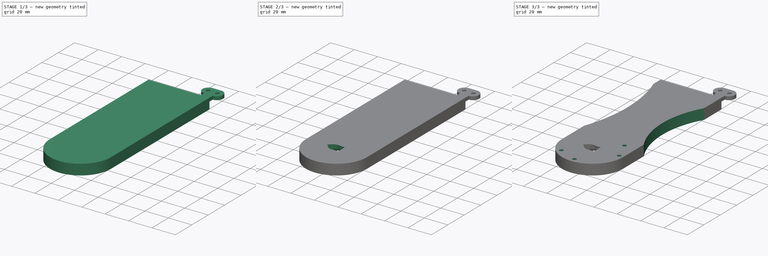
[diagram: build sequence overview — one tinted view per stage of 3, left to right]
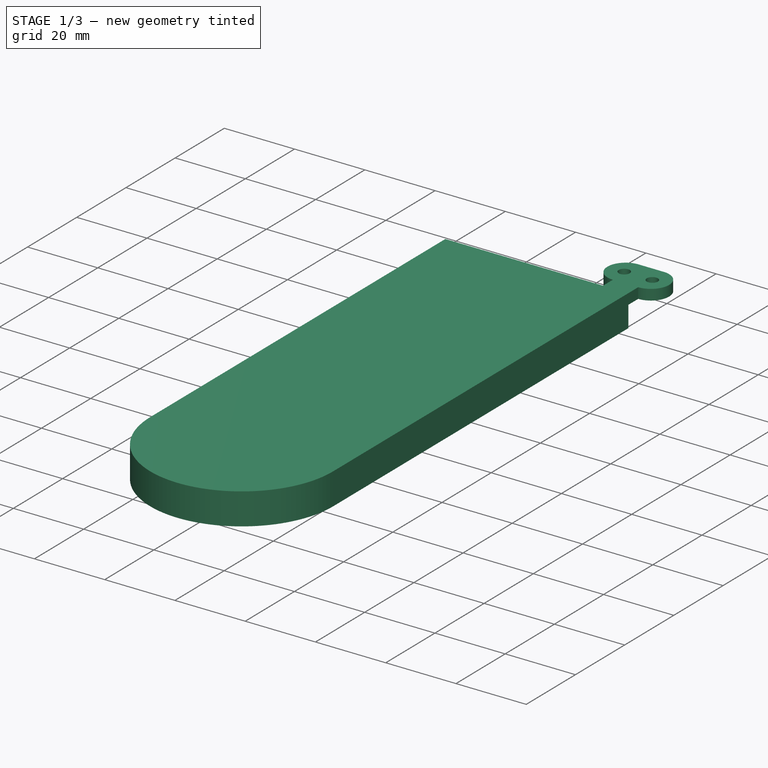
[diagram: stage 1 of 3 — iso view after this stage's code; geometry added in this stage tinted green]
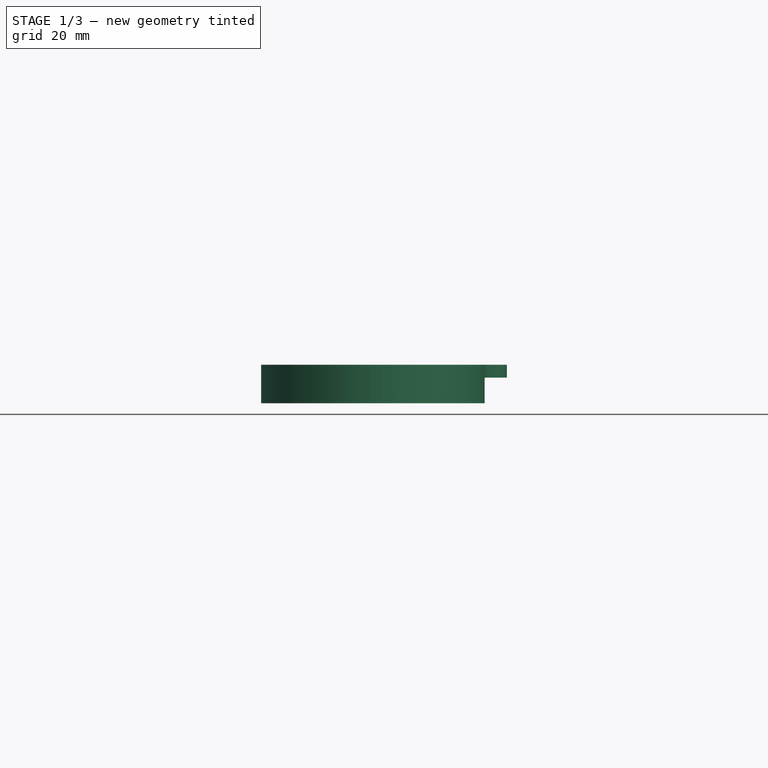
[diagram: stage 1 of 3 — front view after this stage's code; geometry added in this stage tinted green]
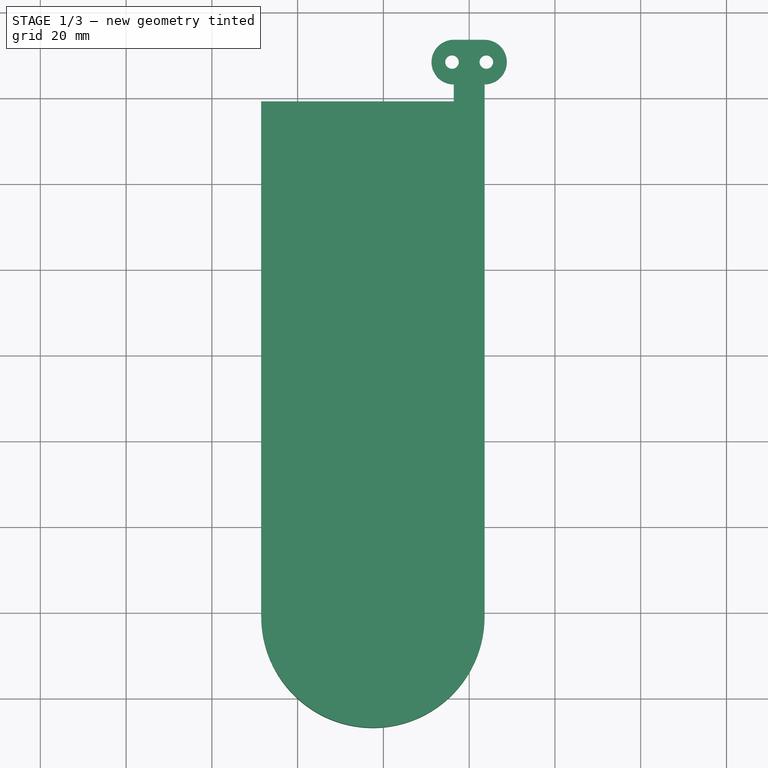
[diagram: stage 1 of 3 — top view after this stage's code; geometry added in this stage tinted green]
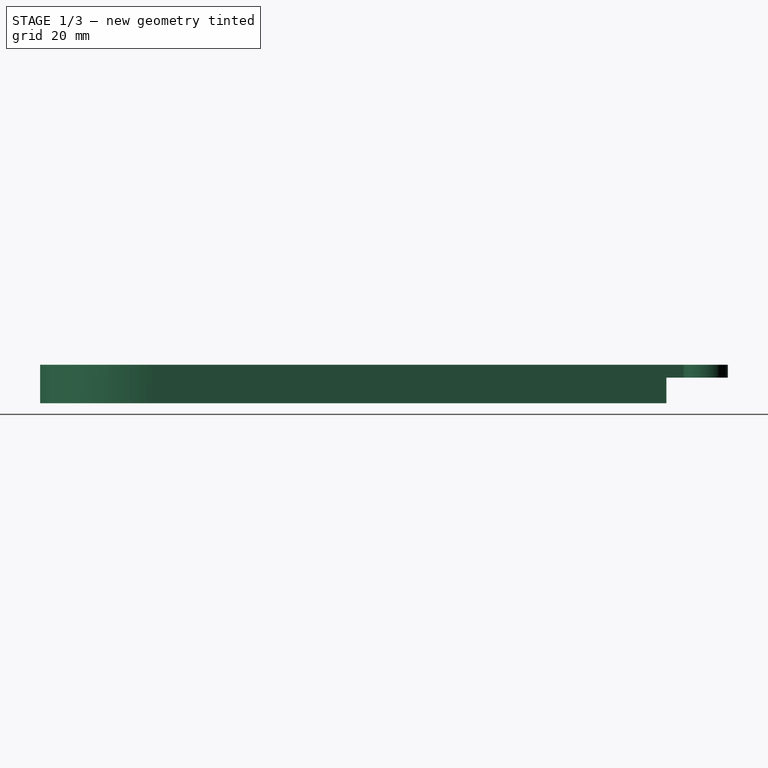
[diagram: stage 1 of 3 — right view after this stage's code; geometry added in this stage tinted green]
FCSTD DOCUMENT  (FreeCAD 0.20R29177 +426 (Git))
Label: button_base_holder
License: All rights reserved
LicenseURL: http://en.wikipedia.org/wiki/All_rights_reserved
objects: Sketcher::SketchObject×7, PartDesign::Pocket×3, Spreadsheet::Sheet×2, PartDesign::Pad×2, PartDesign::SubtractivePipe×1, PartDesign::Body×1
note: 20 computed .brp shape members not serialized (recipe doc carries the construction recipe); baked Part::Feature solids carry a one-line shape summary decoded from their .brp
EXTERNAL_REF file=base_modular_holder.FCStd obj=Spreadsheet003
EXTERNAL_REF file=base_modular_holder.FCStd obj=Spreadsheet004
EXTERNAL_REF file=base_modular_holder.FCStd obj=Sketch

FEATURE [Sketcher::SketchObject] Sketch
  FullyConstrained = true
  MapMode = 5
  Support = -> [XY_Plane]
  expr: .Constraints.pad_ylen = <<base_data>>.button_far_out
  expr: .Constraints.ylen_offset = <<base_data>>.space * 2
  expr: Constraints[25] = <<base_data>>.space
  expr: Constraints[27] = <<base_modular_holder>>#<<button_connect_data>>.screw_dia
  expr: Constraints[33] = <<base_modular_holder>>#<<button_connect_data>>.screw_dia / 2
  expr: Constraints[34] = <<base_modular_holder>>#<<button_connect_data>>.wall_dia - <<base_data>>.space
  expr: Constraints[41] = <<base_modular_holder>>#<<button_connect_data>>.dist_in_base + <<base_data>>.space / 2
  expr: Constraints[51] = <<base_modular_holder>>#<<button_connect_data>>.center_connect2center_hole + <<base_modular_holder>>#<<wire_hole_data>>.wire_xlen / 2 + <<base_data>>.wall_thick * 5
  expr: Constraints[9] = <<base_modular_holder>>#<<button_connect_data>>.dist_screw_dias - <<base_data>>.space * 2
  sketch-geometry (22):
    g0: LineSegment StartX=-3.6 StartY=3.2 StartZ=0 EndX=3.6 EndY=3.2 EndZ=0
    g1: ArcOfCircle CenterX=-3.6 CenterY=8.38 CenterZ=0 NormalX=0 NormalY=0 NormalZ=1 AngleXU=0 Radius=5.18 StartAngle=1.5708 EndAngle=4.71239
    g2: ArcOfCircle CenterX=3.6 CenterY=8.38 CenterZ=0 NormalX=0 NormalY=0 NormalZ=1 AngleXU=0 Radius=5.18 StartAngle=4.71239 EndAngle=7.85398
    g3: LineSegment StartX=-3.6 StartY=13.56 StartZ=0 EndX=0 EndY=13.56 EndZ=0
    g4: LineSegment StartX=3.6 StartY=13.56 StartZ=0 EndX=0 EndY=13.56 EndZ=0
    g5: LineSegment StartX=3.6 StartY=3.2 StartZ=0 EndX=3.6 EndY=13.56 EndZ=0
    g6: LineSegment StartX=-3.6 StartY=3.2 StartZ=0 EndX=-3.6 EndY=13.56 EndZ=0
    g7: LineSegment StartX=3.6 StartY=8.38 StartZ=0 EndX=0 EndY=8.38 EndZ=0
    g8: Circle CenterX=-4 CenterY=8.38 CenterZ=0 NormalX=0 NormalY=0 NormalZ=1 AngleXU=0 Radius=1.58
    g9: Circle CenterX=4 CenterY=8.38 CenterZ=0 NormalX=0 NormalY=0 NormalZ=1 AngleXU=0 Radius=1.58
    g10: LineSegment StartX=3.6 StartY=8.38 StartZ=0 EndX=4 EndY=8.38 EndZ=0
    g11: LineSegment StartX=3.6 StartY=8.38 StartZ=0 EndX=5.18 EndY=8.38 EndZ=0
    g12: LineSegment StartX=5.18 StartY=8.38 StartZ=0 EndX=8.78 EndY=8.38 EndZ=0
    g13: LineSegment StartX=-3.6 StartY=3.2 StartZ=0 EndX=-3.6 EndY=0 EndZ=0
    g14: LineSegment StartX=3.6 StartY=3.2 StartZ=0 EndX=3.6 EndY=0 EndZ=0
    g15: LineSegment StartX=-48.5 StartY=-0.8 StartZ=0 EndX=-48.5 EndY=-120.8 EndZ=0
    g16: LineSegment StartX=3.6 StartY=0 StartZ=0 EndX=3.6 EndY=-120.8 EndZ=0
    g17: LineSegment StartX=-48.5 StartY=-120.8 StartZ=0 EndX=3.6 EndY=-120.8 EndZ=0
    g18: LineSegment StartX=-3.6 StartY=0 StartZ=0 EndX=-3.6 EndY=-0.8 EndZ=0
    g19: LineSegment StartX=-48.5 StartY=-0.8 StartZ=0 EndX=-3.6 EndY=-0.8 EndZ=0
    g20: ArcOfCircle CenterX=-22.45 CenterY=-120.8 CenterZ=0 NormalX=0 NormalY=0 NormalZ=1 AngleXU=0 Radius=26.05 StartAngle=3.14159 EndAngle=6.28319
    g21: LineSegment StartX=-4 StartY=8.38 StartZ=0 EndX=-3.6 EndY=8.38 EndZ=0
  constraints (66):
    c: Horizontal(g0)
    c: Coincident(g3,g1)
    c: PointOnObject(g3,g-2)
    c: Horizontal(g3)
    c: Coincident(g4,g2)
    c: Coincident(g4,g3)
    c: Horizontal(g4)
    c: Equal(g3,g4)
    c: Coincident(g2,g5)
    c: DistanceX(g0,g0) = 7.2
    c: Coincident(g0,g2)
    c: Coincident(g0,g1)
    c: Coincident(g2,g5)
    c: PointOnObject(g2,g5)
    c: Coincident(g6,g1)
    c: Coincident(g6,g1)
    c: PointOnObject(g1,g6)
    c: Vertical(g6)
    c: Vertical(g5)
    c: Coincident(g7,g2)
    c: PointOnObject(g7,g-2)
    c: Horizontal(g7)
    c: Coincident(g10,g2)
    c: Coincident(g10,g9)
    c: Horizontal(g10)
    c: DistanceX(g10,g10) = 0.4
    c: Equal(g9,g8)
    c: Diameter(g8) = 3.16
    c: Coincident(g11,g2)
    c: Horizontal(g11)
    c: Coincident(g12,g11)
    c: PointOnObject(g12,g2)
    c: Horizontal(g12)
    c: DistanceX(g11,g11) = 1.58
    c: DistanceX(g12,g12) = 3.6
    c: Coincident(g13,g1)
    c: PointOnObject(g13,g-1)
    c: Vertical(g13)
    c: Coincident(g14,g2)
    c: PointOnObject(g14,g-1)
    c: Vertical(g14)
    c: DistanceY(g13,g13) = 3.2
    c: Vertical(g15)
    c: Coincident(g16,g14)
    c: Vertical(g16)
    c: Coincident(g17,g15)
    c: Coincident(g17,g16)
    c: Horizontal(g17)
    c: Coincident(g18,g13)
    c: Vertical(g18)
    c: DistanceY(g18,g18) = 0.8  'ylen_offset'
    c: DistanceX(g15,g7) = 48.5
    c: DistanceY(g15,g15) = 120  'pad_ylen'
    c: DistanceX(g-1,g14) = 3.6  'xlen_offset'
    c: DistanceY(g16,g14) = 120.8  'ylen'
    c: DistanceX(g15,g14) = 52.1  'xlen'
    c: Coincident(g19,g15)
    c: Horizontal(g19)
    c: PointOnObject(g20,g17)
    c: Coincident(g20,g16)
    c: Coincident(g20,g15)
    c: Coincident(g19,g18)
    c: Coincident(g21,g8)
    c: Coincident(g21,g1)
    c: Horizontal(g21)
    c: Equal(g10,g21)
FEATURE [Spreadsheet::Sheet] Spreadsheet  label="base_data"
  cells = A1=Name; B1=Value; A2=space; B2(space)==0.4mm; A3=wall_thick; B3(wall_thick)==3.5mm; A4=base_ylen_pad; B4(base_ylen_pad)==10mm; A5=wire_cut_len; A7=button_slit_rad; B7(button_slit_thick)==5mm; A8=button_far_out; B8(button_far_out)==120mm
FEATURE [PartDesign::Pad] Pad
  Direction = (0,0,1)
  Length = 3
  Length2 = 10
  Profile = -> Sketch
  ReferenceAxis = -> Sketch [N_Axis]
  Type = 0
  expr: Length = <<base_modular_holder>>#<<button_connect_data>>.clasp_thick
FEATURE [Sketcher::SketchObject] Sketch001
  FullyConstrained = true
  MapMode = 5
  Support = -> [XY_Plane]
  expr: .AttachmentOffset.Base.z = 0
  expr: Constraints[11] = Sketch.Constraints.xlen_offset
  expr: Constraints[12] = Sketch.Constraints.ylen_offset
  expr: Constraints[13] = Sketch.Constraints.xlen
  expr: Constraints[14] = Sketch.Constraints.ylen - Sketch.Constraints.ylen_offset
  sketch-geometry (5):
    g0: LineSegment StartX=3.6 StartY=-0.8 StartZ=0 EndX=-48.5 EndY=-0.8 EndZ=0
    g1: LineSegment StartX=-48.5 StartY=-0.8 StartZ=0 EndX=-48.5 EndY=-120.8 EndZ=0
    g2: LineSegment StartX=-48.5 StartY=-120.8 StartZ=0 EndX=3.6 EndY=-120.8 EndZ=0
    g3: ArcOfCircle CenterX=-22.45 CenterY=-120.8 CenterZ=0 NormalX=0 NormalY=0 NormalZ=1 AngleXU=0 Radius=26.05 StartAngle=3.14159 EndAngle=6.28319
    g4: LineSegment StartX=3.6 StartY=-0.8 StartZ=0 EndX=3.6 EndY=-120.8 EndZ=0
  constraints (15):
    c: Horizontal(g0)
    c: Coincident(g1,g0)
    c: Vertical(g1)
    c: Coincident(g2,g1)
    c: Horizontal(g2)
    c: PointOnObject(g3,g2)
    c: Coincident(g3,g1)
    c: Coincident(g4,g0)
    c: Coincident(g4,g3)
    c: Vertical(g4)
    c: Coincident(g3,g2)
    c: DistanceX(g-1,g0) = 3.6
    c: DistanceY(g0,g-1) = 0.8
    c: DistanceX(g0,g0) = 52.1
    c: DistanceY(g1,g1) = 120
FEATURE [PartDesign::Pad] Pad001
  BaseFeature = -> Pad
  Direction = (0,0,1)
  Length = 6
  Length2 = 10
  Profile = -> Sketch001
  ReferenceAxis = -> Sketch001 [N_Axis]
  Reversed = true
  Type = 0
  expr: Length = <<base_modular_holder>>#<<Sketch>>.Constraints.thick_ylen - <<base_modular_holder>>#<<button_connect_data>>.clasp_thick
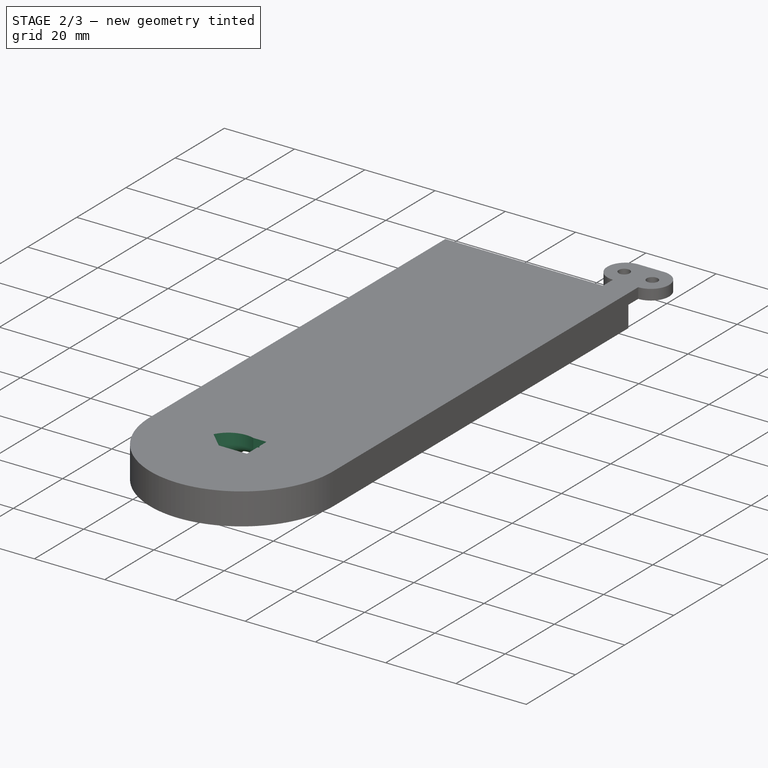
[diagram: stage 2 of 3 — iso view after this stage's code; geometry added in this stage tinted green]
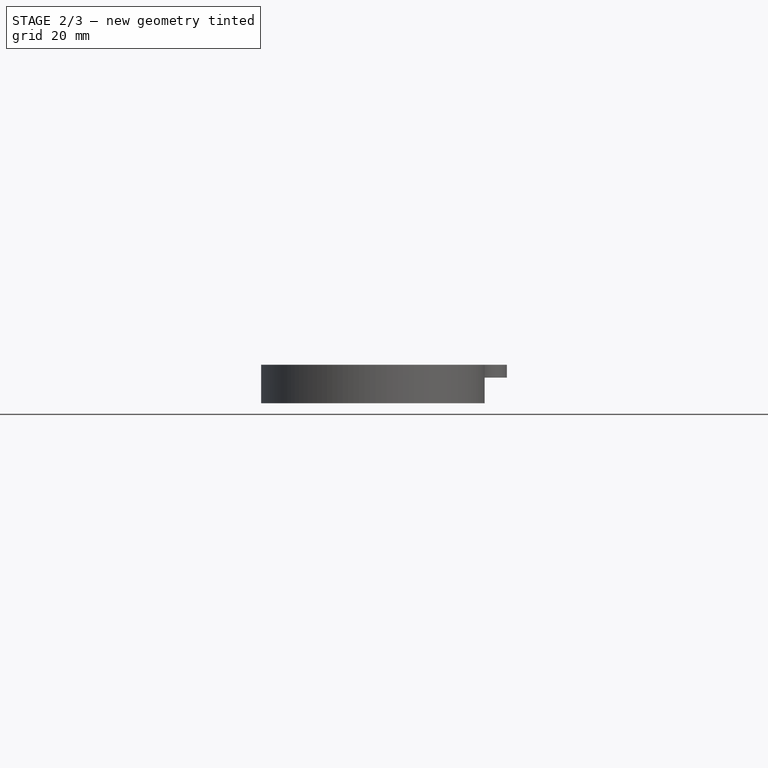
[diagram: stage 2 of 3 — front view after this stage's code; geometry added in this stage tinted green]
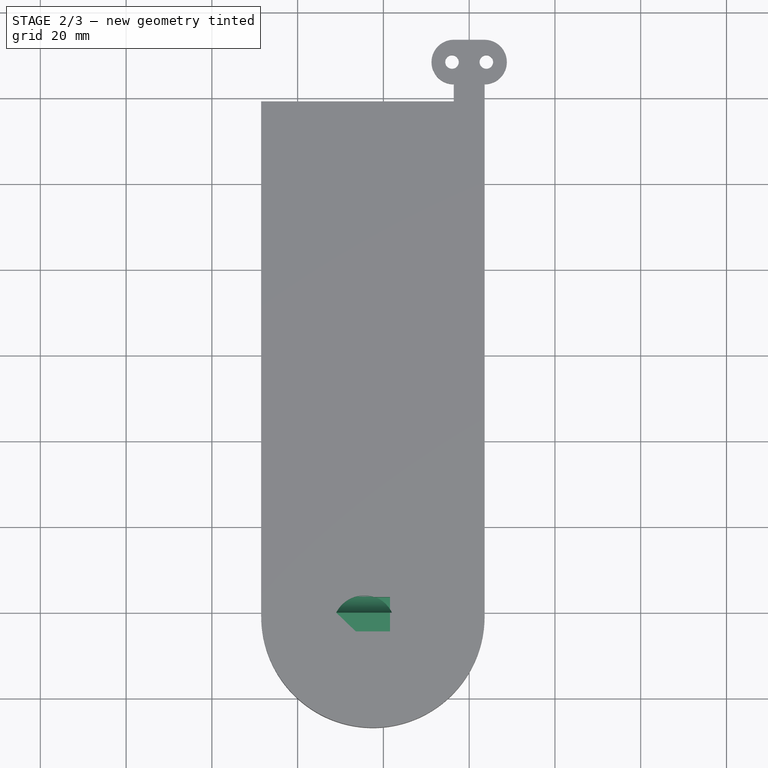
[diagram: stage 2 of 3 — top view after this stage's code; geometry added in this stage tinted green]
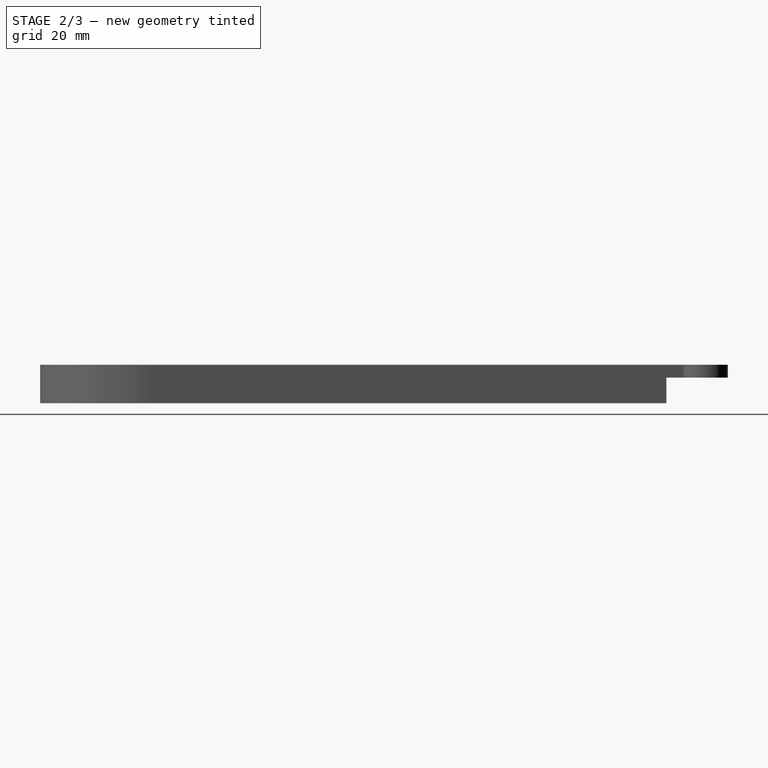
[diagram: stage 2 of 3 — right view after this stage's code; geometry added in this stage tinted green]
FEATURE [Sketcher::SketchObject] Sketch002
  FullyConstrained = true
  MapMode = 5
  Placement = pos=(0,0,0) rot=(1,0,0;1.5708rad)
  Support = -> [XZ_Plane]
  expr: Constraints[15] = <<base_modular_holder>>#<<wire_hole_data>>.wire_xlen
  expr: Constraints[16] = <<base_modular_holder>>#<<wire_hole_data>>.wire_ylen
  expr: Constraints[17] = <<Pad001>>.Length + <<base_data>>.space / 10
  expr: Constraints[4] = <<base_modular_holder>>#<<button_connect_data>>.center_connect2center_hole
  sketch-geometry (6):
    g0: LineSegment StartX=0 StartY=0 StartZ=0 EndX=0 EndY=-6.04 EndZ=0
    g1: LineSegment StartX=0 StartY=-6.04 StartZ=0 EndX=-24.5 EndY=-6.04 EndZ=0
    g2: LineSegment StartX=-24.5 StartY=-6.04 StartZ=0 EndX=-31 EndY=-6.04 EndZ=0
    g3: LineSegment StartX=-24.5 StartY=-6.04 StartZ=0 EndX=-18 EndY=-6.04 EndZ=0
    g4: ArcOfCircle CenterX=-24.5 CenterY=-9.32125 CenterZ=0 NormalX=0 NormalY=0 NormalZ=1 AngleXU=0 Radius=7.28125 StartAngle=0.467486 EndAngle=2.67411
    g5: LineSegment StartX=-24.5 StartY=-6.04 StartZ=0 EndX=-24.5 EndY=-2.04 EndZ=0
  constraints (18):
    c: Coincident(g0,g-1)
    c: Vertical(g0)
    c: Coincident(g1,g0)
    c: Horizontal(g1)
    c: DistanceX(g1,g1) = 24.5
    c: Coincident(g2,g1)
    c: Horizontal(g2)
    c: Coincident(g3,g2)
    c: PointOnObject(g3,g1)
    c: Equal(g3,g2)
    c: Coincident(g4,g3)
    c: Coincident(g4,g2)
    c: Coincident(g5,g2)
    c: PointOnObject(g5,g4)
    c: Vertical(g5)
    c: DistanceX(g2,g3) = 13
    c: DistanceY(g5,g5) = 4
    c: DistanceY(g0,g0) = 6.04
FEATURE [Sketcher::SketchObject] Sketch004
  FullyConstrained = false
  MapMode = 5
  Placement = pos=(0,0,0) rot=(0.57735,0.57735,0.57735;2.0944rad)
  Support = -> [YZ_Plane]
  expr: Constraints[2] = <<Pad001>>.Length
  expr: Constraints[7] = Sketch.Constraints.pad_ylen
  expr: Constraints[8] = <<Pad>>.Length
  sketch-geometry (4):
    g0: LineSegment StartX=0 StartY=0 StartZ=0 EndX=0 EndY=-6 EndZ=0
    g1: LineSegment StartX=0 StartY=-6 StartZ=0 EndX=-114 EndY=-6 EndZ=0
    g2: LineSegment StartX=-120 StartY=7e-16 StartZ=0 EndX=-120 EndY=3 EndZ=0
    g3: ArcOfCircle CenterX=-114 CenterY=0 CenterZ=0 NormalX=0 NormalY=0 NormalZ=1 AngleXU=0 Radius=6 StartAngle=3.14159 EndAngle=4.71239
  constraints (12):
    c: Coincident(g0,g-1)
    c: PointOnObject(g0,g-2)
    c: DistanceY(g0,g0) = 6
    c: Coincident(g1,g0)
    c: Horizontal(g1)
    c: PointOnObject(g2,g-1)
    c: Vertical(g2)
    c: DistanceX(g2,g0) = 120
    c: DistanceY(g2,g2) = 3
    c: PointOnObject(g3,g-1)
    c: Coincident(g3,g1)
    c: Coincident(g3,g2)
FEATURE [PartDesign::SubtractivePipe] SubtractivePipe
  AuxilleryCurvelinear = true
  AuxillerySpineTangent = false
  BaseFeature = -> Pad001
  Binormal = (0,0,0)
  Mode = 0
  Profile = -> Sketch002
  Spine = -> Sketch004
  SpineTangent = false
  Transformation = 0
  Transition = 0
FEATURE [Spreadsheet::Sheet] Spreadsheet001  label="button_data"
  cells = A1=Name; B1=Value; A2=button_len; B2(button_len)==8mm; A3=button_zlen; B3(button_zlen)==4mm; A5=button_inner_cir_rad; B5(button_inner_cir_rad)==12mm; A6=button_inner_big_cir_rad; B6(button_inner_big_cir_rad)==16mm; A8=button_start_len; B8(button_start_len)==2mm
FEATURE [Sketcher::SketchObject] Sketch005
  AttachmentOffset = pos=(0,0,3) rot=(0,0,1;0rad)
  ExternalGeometry = -> [SubtractivePipe]
  FullyConstrained = false
  MapMode = 5
  Placement = pos=(0,0,3) rot=(0,0,1;0rad)
  Support = -> [XY_Plane]
  expr: .AttachmentOffset.Base.z = <<Pad>>.Length
  expr: .Constraints.dia = Sketch.Constraints.xlen
  expr: .Constraints.mid_xlen = Sketch.Constraints.xlen / 2 - Sketch.Constraints.xlen_offset
  expr: .Constraints.mid_ylen = Sketch.Constraints.ylen - <<base_data>>.space
  expr: Constraints[15] = <<button_data>>.button_len
  sketch-geometry (11):
    g0: LineSegment StartX=0 StartY=0 StartZ=0 EndX=-22.45 EndY=0 EndZ=0
    g1: Circle CenterX=-22.45 CenterY=-120.4 CenterZ=0 NormalX=0 NormalY=0 NormalZ=1 AngleXU=0 Radius=26.05
    g2: LineSegment StartX=-22.45 StartY=0 StartZ=0 EndX=-22.45 EndY=-120.4 EndZ=0
    g3: LineSegment StartX=-26.45 StartY=-124.4 StartZ=0 EndX=-18.45 EndY=-124.4 EndZ=0
    g4: LineSegment StartX=-18.45 StartY=-124.4 StartZ=0 EndX=-18.45 EndY=-116.4 EndZ=0
    g5: LineSegment StartX=-18.45 StartY=-116.4 StartZ=0 EndX=-26.45 EndY=-116.4 EndZ=0
    g6: GeomPoint X=-22.45 Y=-120.4 Z=0
    g7: LineSegment StartX=-26.45 StartY=-124.4 StartZ=0 EndX=-31 EndY=-120.04 EndZ=0
    g8: LineSegment StartX=-26.45 StartY=-116.4 StartZ=0 EndX=-27.6917 EndY=-116.777 EndZ=0
    g9: LineSegment StartX=-26.45 StartY=-124.4 StartZ=0 EndX=-26.45 EndY=-116.4 EndZ=0
    g10: LineSegment StartX=-27.6917 StartY=-116.777 StartZ=0 EndX=-31 EndY=-120.04 EndZ=0
  constraints (26):
    c: Coincident(g0,g-1)
    c: PointOnObject(g0,g-1)
    c: DistanceX(g0,g0) = 22.45  'mid_xlen'
    c: Coincident(g2,g0)
    c: Coincident(g2,g1)
    c: Vertical(g2)
    c: DistanceY(g2,g2) = 120.4  'mid_ylen'
    c: Diameter(g1) = 52.1  'dia'
    c: Coincident(g3,g4)
    c: Coincident(g4,g5)
    c: Horizontal(g3)
    c: Horizontal(g5)
    c: Vertical(g4)
    c: Symmetric(g3,g5,g6)
    c: Coincident(g6,g1)
    c: DistanceY(g4,g4) = 8
    c: Equal(g4,g3)
    c: Coincident(g7,g3)
    c: Coincident(g7,g-3)
    c: Coincident(g8,g5)
    c: Coincident(g9,g3)
    c: Coincident(g9,g5)
    c: Vertical(g9)
    c: Coincident(g10,g7)
    c: Coincident(g10,g8)
    c: PointOnObject(g8,g-5)
FEATURE [PartDesign::Pocket] Pocket
  BaseFeature = -> SubtractivePipe
  Direction = (0,0,-1)
  Length = 4
  Length2 = 5
  Profile = -> Sketch005
  ReferenceAxis = -> Sketch005 [N_Axis]
  Type = 0
  expr: Length = <<button_data>>.button_zlen
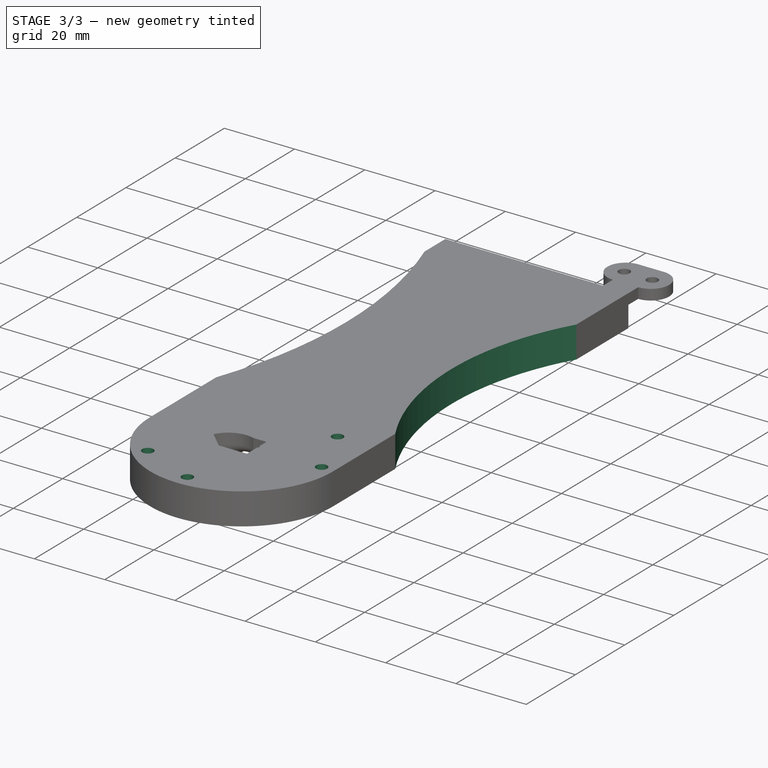
[diagram: stage 3 of 3 — iso view after this stage's code; geometry added in this stage tinted green]
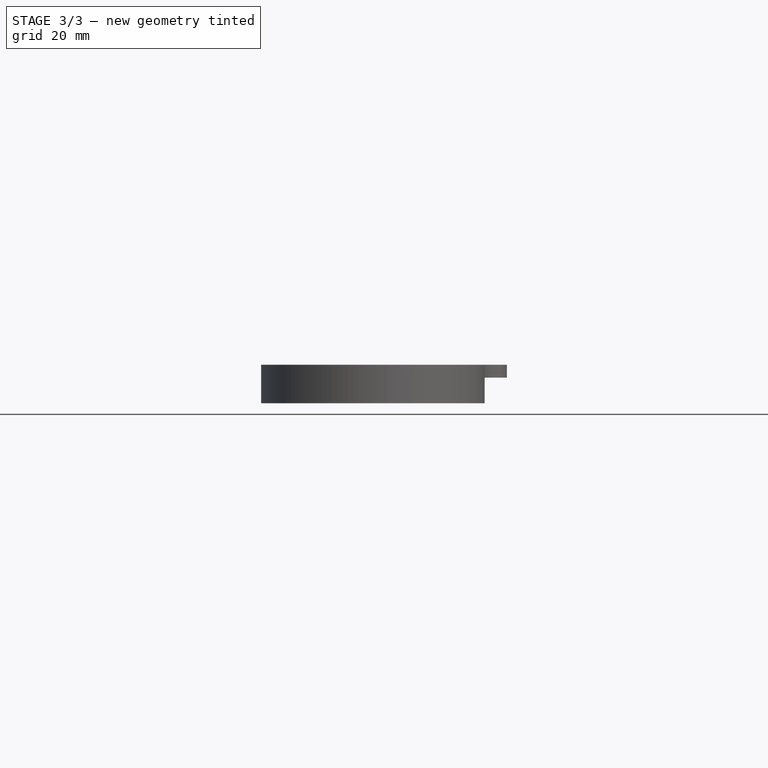
[diagram: stage 3 of 3 — front view after this stage's code; geometry added in this stage tinted green]
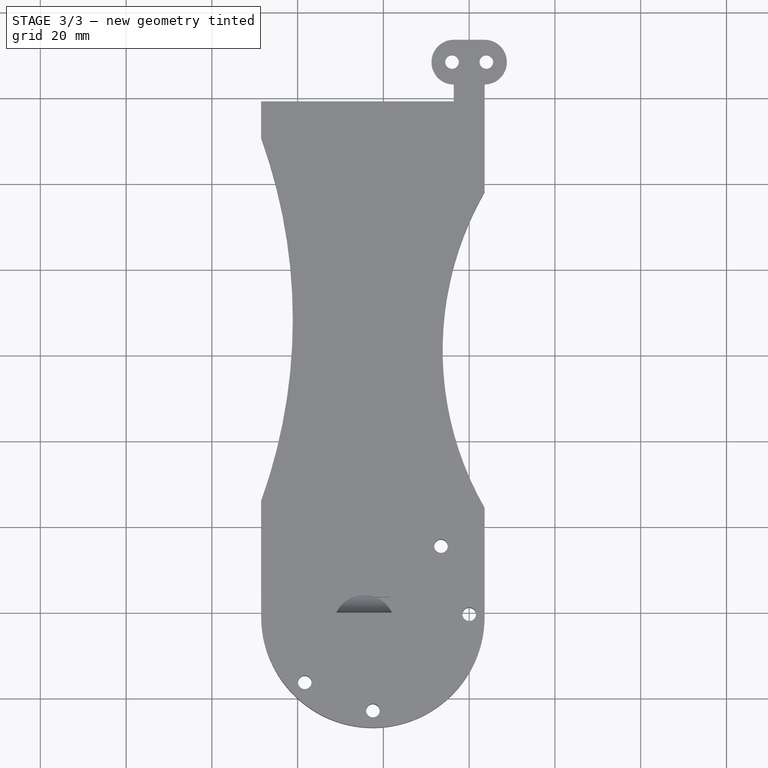
[diagram: stage 3 of 3 — top view after this stage's code; geometry added in this stage tinted green]
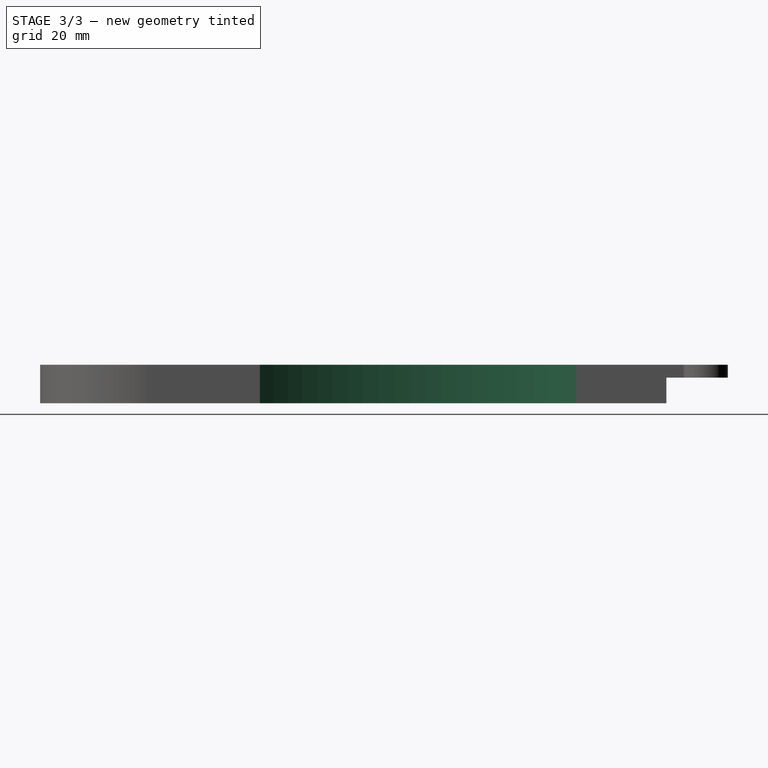
[diagram: stage 3 of 3 — right view after this stage's code; geometry added in this stage tinted green]
FEATURE [Sketcher::SketchObject] Sketch006
  FullyConstrained = true
  MapMode = 5
  Support = -> [XY_Plane]
  expr: .Constraints.dia = <<Sketch005>>.Constraints.dia
  expr: .Constraints.inner_rad = <<button_data>>.button_inner_cir_rad
  expr: .Constraints.mid_dia = Spreadsheet001.button_inner_big_cir_rad * 2
  expr: Constraints[2] = <<Sketch005>>.Constraints.mid_xlen
  expr: Constraints[41] = <<base_modular_holder>>#<<button_connect_data>>.screw_dia
  expr: Constraints[49] = <<button_data>>.button_start_len
  expr: Constraints[59] = 45
  expr: Constraints[5] = <<Sketch005>>.Constraints.mid_ylen
  sketch-geometry (31):
    g0: LineSegment StartX=0 StartY=0 StartZ=0 EndX=-22.45 EndY=0 EndZ=0
    g1: Circle CenterX=-22.45 CenterY=-120.4 CenterZ=0 NormalX=0 NormalY=0 NormalZ=1 AngleXU=0 Radius=26.05
    g2: LineSegment StartX=-22.45 StartY=-120.4 StartZ=0 EndX=-22.45 EndY=-108.4 EndZ=0
    g3: LineSegment StartX=-22.45 StartY=-120.4 StartZ=0 EndX=-22.45 EndY=-132.4 EndZ=0
    g4: LineSegment StartX=-22.45 StartY=-120.4 StartZ=0 EndX=-10.45 EndY=-120.4 EndZ=0
    g5: LineSegment StartX=-22.45 StartY=-94.35 StartZ=0 EndX=-22.45 EndY=0 EndZ=0
    g6: Circle CenterX=-22.45 CenterY=-120.4 CenterZ=0 NormalX=0 NormalY=0 NormalZ=1 AngleXU=0 Radius=12
    g7: Circle CenterX=-22.45 CenterY=-120.4 CenterZ=0 NormalX=0 NormalY=0 NormalZ=1 AngleXU=0 Radius=16
    g8: LineSegment StartX=-22.45 StartY=-132.4 StartZ=0 EndX=-22.45 EndY=-136.4 EndZ=0
    g9: LineSegment StartX=-22.45 StartY=-142.87 StartZ=0 EndX=-22.45 EndY=-146.45 EndZ=0
    g10: Circle CenterX=-22.45 CenterY=-142.87 CenterZ=0 NormalX=0 NormalY=0 NormalZ=1 AngleXU=0 Radius=1.58
    g11: LineSegment StartX=-10.45 StartY=-120.4 StartZ=0 EndX=-6.45 EndY=-120.4 EndZ=0
    g12: LineSegment StartX=0.02 StartY=-120.4 StartZ=0 EndX=3.6 EndY=-120.4 EndZ=0
    g13: LineSegment StartX=-22.45 StartY=-108.4 StartZ=0 EndX=-22.45 EndY=-104.4 EndZ=0
    g14: LineSegment StartX=-22.45 StartY=-104.4 StartZ=0 EndX=-22.45 EndY=-99.375 EndZ=0
    g15: LineSegment StartX=-22.45 StartY=-94.35 StartZ=0 EndX=-22.45 EndY=-99.375 EndZ=0
    g16: Circle CenterX=0.02 CenterY=-120.4 CenterZ=0 NormalX=0 NormalY=0 NormalZ=1 AngleXU=0 Radius=1.58
    g17: LineSegment StartX=-22.45 StartY=-120.4 StartZ=0 EndX=-11.1363 EndY=-109.086 EndZ=0
    g18: LineSegment StartX=-6.56131 StartY=-104.511 StartZ=0 EndX=-4.02987 EndY=-101.98 EndZ=0
    g19: Circle CenterX=-6.56131 CenterY=-104.511 CenterZ=0 NormalX=0 NormalY=0 NormalZ=1 AngleXU=0 Radius=1.58
    g20: GeomPoint X=-5.44408 Y=-103.394 Z=0
    g21: LineSegment StartX=-22.45 StartY=-120.4 StartZ=0 EndX=-30.9353 EndY=-128.885 EndZ=0
    g22: LineSegment StartX=-30.9353 StartY=-128.885 StartZ=0 EndX=-33.7637 EndY=-131.714 EndZ=0
    g23: LineSegment StartX=-38.3387 StartY=-136.289 StartZ=0 EndX=-40.8701 EndY=-138.82 EndZ=0
    g24: LineSegment StartX=-22.45 StartY=-120.4 StartZ=0 EndX=-48.5 EndY=-120.4 EndZ=0
    g25: Circle CenterX=-38.3387 CenterY=-136.289 CenterZ=0 NormalX=0 NormalY=0 NormalZ=1 AngleXU=0 Radius=1.58
    g26: LineSegment StartX=-38.3387 StartY=-136.289 StartZ=0 EndX=-33.7637 EndY=-131.714 EndZ=0
    g27: LineSegment StartX=-22.45 StartY=-142.87 StartZ=0 EndX=-22.45 EndY=-136.4 EndZ=0
    g28: LineSegment StartX=0.02 StartY=-120.4 StartZ=0 EndX=-6.45 EndY=-120.4 EndZ=0
    g29: LineSegment StartX=-6.56131 StartY=-104.511 StartZ=0 EndX=-11.1363 EndY=-109.086 EndZ=0
    g30: GeomPoint X=-7.67854 Y=-105.629 Z=0
  constraints (85):
    c: Coincident(g0,g-1)
    c: PointOnObject(g0,g-1)
    c: DistanceX(g0,g0) = 22.45
    c: Diameter(g1) = 52.1  'dia'
    c: PointOnObject(g5,g1)
    c: DistanceY(g1,g0) = 120.4
    c: Coincident(g3,g1)
    c: Vertical(g3)
    c: Coincident(g4,g1)
    c: Horizontal(g4)
    c: Coincident(g2,g1)
    c: Vertical(g2)
    c: Coincident(g5,g0)
    c: Vertical(g5)
    c: Coincident(g6,g1)
    c: PointOnObject(g4,g6)
    c: PointOnObject(g3,g6)
    c: PointOnObject(g2,g6)
    c: DistanceX(g4,g4) = 12  'inner_rad'
    c: Coincident(g7,g1)
    c: Diameter(g7) = 32  'mid_dia'
    c: Coincident(g8,g3)
    c: PointOnObject(g8,g7)
    c: PointOnObject(g9,g1)
    c: Vertical(g9)
    c: Vertical(g8)
    c: Coincident(g11,g4)
    c: PointOnObject(g11,g7)
    c: Horizontal(g11)
    c: PointOnObject(g12,g1)
    c: Horizontal(g12)
    c: Coincident(g13,g2)
    c: PointOnObject(g13,g7)
    c: Vertical(g13)
    c: Coincident(g14,g13)
    c: Vertical(g14)
    c: Coincident(g15,g5)
    c: Coincident(g15,g14)
    c: Vertical(g15)
    c: Equal(g15,g14)
    c: Equal(g16,g10)
    c: Diameter(g16) = 3.16
    c: Coincident(g17,g1)
    c: PointOnObject(g17,g7)
    c: PointOnObject(g18,g1)
    c: Angle(g4,g17) = 0.785398
    c: Equal(g16,g19)
    c: PointOnObject(g20,g19)
    c: PointOnObject(g20,g18)
    c: Distance(g20,g18) = 2
    c: Coincident(g21,g1)
    c: PointOnObject(g21,g6)
    c: Coincident(g22,g21)
    c: PointOnObject(g22,g7)
    c: PointOnObject(g23,g1)
    c: Parallel(g22,g21)
    c: Coincident(g24,g1)
    c: PointOnObject(g24,g1)
    c: Horizontal(g24)
    c: Angle(g24,g21) = 0.785398
    c: Equal(g10,g25)
    c: Coincident(g26,g25)
    c: Coincident(g26,g22)
    c: Coincident(g27,g10)
    c: Coincident(g27,g8)
    c: Vertical(g27)
    c: Coincident(g28,g16)
    c: Coincident(g28,g11)
    c: Horizontal(g28)
    c: Coincident(g29,g19)
    c: Coincident(g29,g17)
    c: Parallel(g17,g29)
    c: Parallel(g18,g29)
    c: Parallel(g26,g23)
    c: Parallel(g26,g22)
    c: Equal(g18,g12)
    c: Equal(g12,g9)
    c: Equal(g9,g23)
    c: Coincident(g18,g19)
    c: Coincident(g16,g12)
    c: Coincident(g9,g10)
    c: Coincident(g23,g25)
    c: PointOnObject(g30,g19)
    c: PointOnObject(g30,g29)
    c: Distance(g30,g17) = 4.89
FEATURE [PartDesign::Pocket] Pocket001
  BaseFeature = -> Pocket
  Direction = (0,0,-1)
  Length = 5
  Length2 = 5
  Midplane = true
  Profile = -> Sketch006
  ReferenceAxis = -> Sketch006 [N_Axis]
  Type = 1
FEATURE [Sketcher::SketchObject] Sketch007
  FullyConstrained = false
  MapMode = 5
  Support = -> [XY_Plane]
  sketch-geometry (11):
    g0: LineSegment StartX=-58.8228 StartY=0 StartZ=0 EndX=-58.8228 EndY=-99.491 EndZ=0
    g1: LineSegment StartX=-58.8228 StartY=-99.491 StartZ=0 EndX=-50.6495 EndY=-99.491 EndZ=0
    g2: ArcOfCircle CenterX=68.0067 CenterY=-58.7514 CenterZ=0 NormalX=0 NormalY=0 NormalZ=1 AngleXU=0 Radius=74.1966 StartAngle=2.42636 EndAngle=3.81672
    g3: LineSegment StartX=11.9926 StartY=-10.0938 StartZ=0 EndX=11.9926 EndY=31.2901 EndZ=0
    g4: LineSegment StartX=-52.2562 StartY=2.84e-14 StartZ=0 EndX=-52.2562 EndY=31.2901 EndZ=0
    g5: LineSegment StartX=-52.2562 StartY=31.2901 StartZ=0 EndX=11.9926 EndY=31.2901 EndZ=0
    g6: LineSegment StartX=-58.8228 StartY=0 StartZ=0 EndX=-58.8228 EndY=66.3259 EndZ=0
    g7: LineSegment StartX=-58.8228 StartY=66.3259 StartZ=0 EndX=35.2563 EndY=66.3259 EndZ=0
    g8: LineSegment StartX=35.2563 StartY=66.3259 StartZ=0 EndX=35.2563 EndY=-105.124 EndZ=0
    g9: LineSegment StartX=35.2563 StartY=-105.124 StartZ=0 EndX=10.087 EndY=-105.124 EndZ=0
    g10: ArcOfCircle CenterX=-166.334 CenterY=-51.6007 CenterZ=0 NormalX=0 NormalY=0 NormalZ=1 AngleXU=0 Radius=125.205 StartAngle=5.89069 EndAngle=6.70798
  constraints (22):
    c: PointOnObject(g4,g-1)
    c: PointOnObject(g0,g-1)
    c: Vertical(g0)
    c: Coincident(g0,g1)
    c: Horizontal(g1)
    c: Coincident(g3,g2)
    c: Vertical(g3)
    c: Vertical(g4)
    c: Coincident(g4,g5)
    c: Coincident(g5,g3)
    c: Horizontal(g5)
    c: Coincident(g0,g6)
    c: Vertical(g6)
    c: Coincident(g6,g7)
    c: Horizontal(g7)
    c: Coincident(g7,g8)
    c: Vertical(g8)
    c: Coincident(g8,g9)
    c: Coincident(g9,g2)
    c: Horizontal(g9)
    c: Coincident(g10,g4)
    c: Coincident(g10,g1)
FEATURE [PartDesign::Pocket] Pocket002
  BaseFeature = -> Pocket001
  Direction = (0,0,-1)
  Length = 5
  Length2 = 5
  Midplane = true
  Profile = -> Sketch007
  ReferenceAxis = -> Sketch007 [N_Axis]
  Type = 1
FEATURE [PartDesign::Body] Body
  Group = -> [Sketch,Pad,Sketch001,Pad001,Sketch002,Sketch004,SubtractivePipe,Sketch005,Pocket,Sketch006,Pocket001,Sketch007,Pocket002]
  Origin = -> Origin
  Tip = -> Pocket002
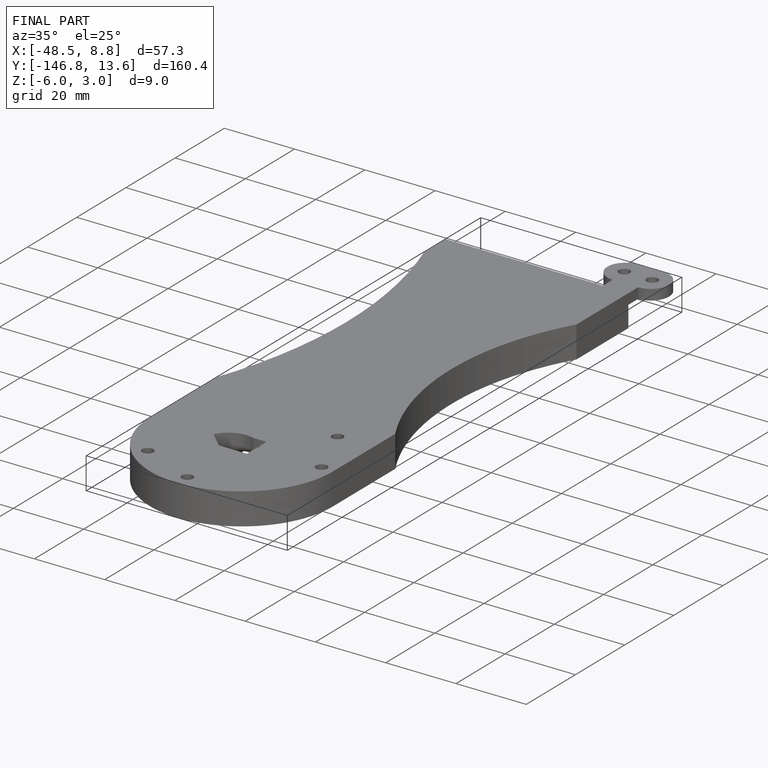
[diagram: finished part — iso view with bounding-box wireframe]
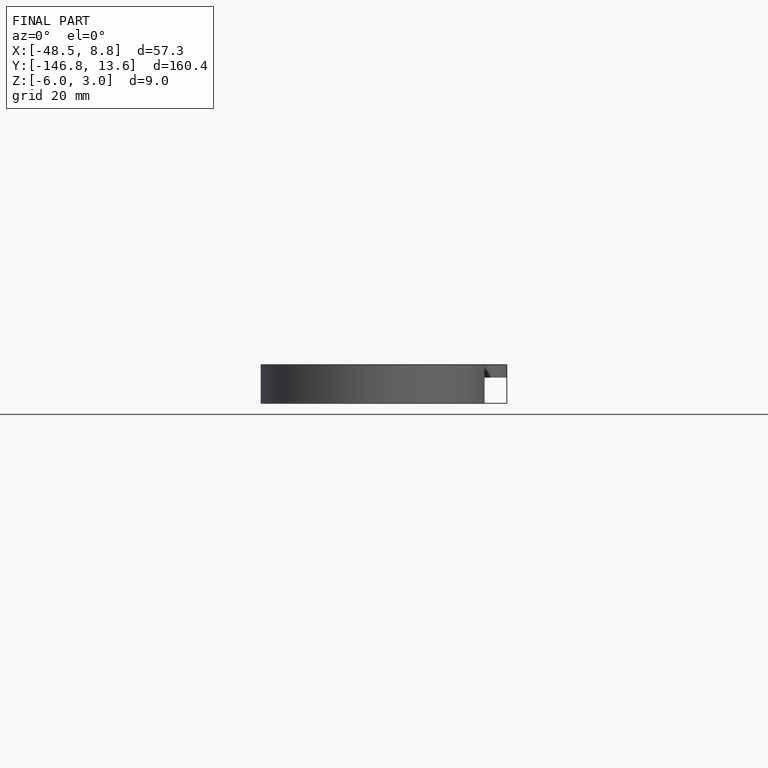
[diagram: finished part — front view with bounding-box wireframe]
